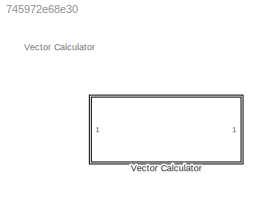
MODEL slx_745972e68e30
KIND model
CONFIG AbsTol = auto
CONFIG EnableMultiTasking = off
CONFIG FixedStep = auto
CONFIG MaxStep = auto
CONFIG MinStep = auto
CONFIG RelTol = 1e-3
CONFIG SampleTimeConstraint = Unconstrained
CONFIG SolverName = VariableStepAuto
CONFIG StartTime = 0.0
CONFIG StopTime = 10.0
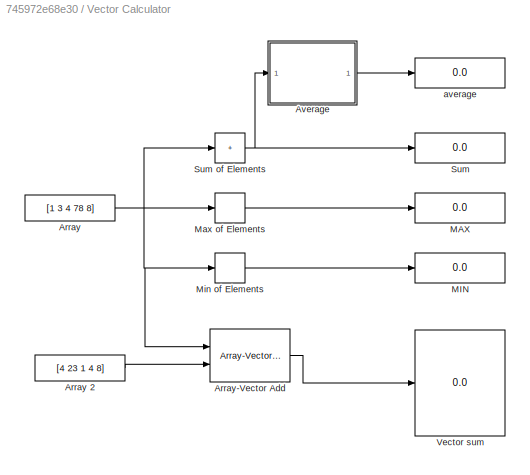
BLOCK [SubSystem] Vector Calculator
  Ports = []
  RequestExecContextInheritance = off
BLOCK [Constant] Vector Calculator/Array 
  OutDataTypeStr = double
  Value = [1 3 4 78 8]
BLOCK [Constant] Vector Calculator/Array 2
  OutDataTypeStr = double
  Value = [4 23 1 4 8]
BLOCK [Reference] Vector Calculator/Array-Vector Add  REF=dspmtrx3/Array-Vector
Add
  Ports = [2, 1]
  SourceBlock = dspmtrx3/Array-Vector\nAdd
  SourceProductBaseCode = DS
  SourceType = Array-Vector Add
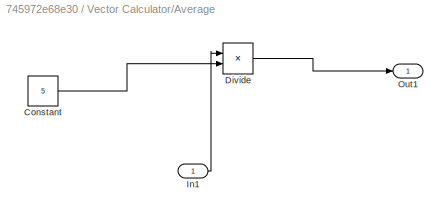
BLOCK [SubSystem] Vector Calculator/Average
  Ports = [1, 1]
  RequestExecContextInheritance = off
BLOCK [Constant] Vector Calculator/Average/Constant
  Value = 5
BLOCK [Product] Vector Calculator/Average/Divide
  Inputs = */
  Ports = [2, 1]
BLOCK [Inport] Vector Calculator/Average/In1
BLOCK [Outport] Vector Calculator/Average/Out1
BLOCK [Display] Vector Calculator/MAX
  Decimation = 1
  Ports = [1]
BLOCK [Display] Vector Calculator/MIN
  Decimation = 1
  Ports = [1]
BLOCK [MinMax] Vector Calculator/Max of Elements
  Function = max
  Ports = [1, 1]
BLOCK [MinMax] Vector Calculator/Min of Elements
  Ports = [1, 1]
BLOCK [Display] Vector Calculator/Sum
  Decimation = 1
  Ports = [1]
BLOCK [Sum] Vector Calculator/Sum of Elements
  IconShape = rectangular
  Inputs = +
  Ports = [1, 1]
BLOCK [Display] Vector Calculator/Vector sum
  Decimation = 1
  Ports = [1]
BLOCK [Display] Vector Calculator/average
  Decimation = 1
  Ports = [1]
ANNOTATION (root): Vector Calculator
LINE Vector Calculator/Array 2:1 -> Vector Calculator/Array-Vector Add:2
NET Vector Calculator/Array :1 -> Vector Calculator/Array-Vector Add:1, Vector Calculator/Max of Elements:1, Vector Calculator/Min of Elements:1, Vector Calculator/Sum of Elements:1
LINE Vector Calculator/Array-Vector Add:1 -> Vector Calculator/Vector sum:1
LINE Vector Calculator/Average/Constant:1 -> Vector Calculator/Average/Divide:2
LINE Vector Calculator/Average/Divide:1 -> Vector Calculator/Average/Out1:1
LINE Vector Calculator/Average/In1:1 -> Vector Calculator/Average/Divide:1
LINE Vector Calculator/Average:1 -> Vector Calculator/average:1
LINE Vector Calculator/Max of Elements:1 -> Vector Calculator/MAX:1
LINE Vector Calculator/Min of Elements:1 -> Vector Calculator/MIN:1
NET Vector Calculator/Sum of Elements:1 -> Vector Calculator/Average:1, Vector Calculator/Sum:1
note: NET lines group one-source signal fan-out (src -> all destinations, sorted); 1:1 wires keep LINE
